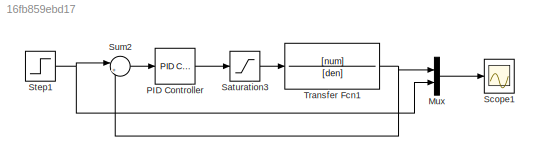
MODEL slx_16fb859ebd17
KIND model
CONFIG AbsTol = auto
CONFIG EnableMultiTasking = off
CONFIG FixedStep = auto
CONFIG MaxStep = auto
CONFIG MinStep = auto
CONFIG RelTol = 1e-3
CONFIG SampleTimeConstraint = Unconstrained
CONFIG SolverName = VariableStepAuto
CONFIG StartTime = 0.0
CONFIG StopTime = 0.05
BLOCK [Mux] Mux
  DisplayOption = bar
  Inputs = 2
BLOCK [Reference] PID Controller  REF=slpidlib/PID Controller
  LibrarySourceBlock = simulink/Continuous/PID Controller
  SourceBlock = slpidlib/PID Controller
  SourceType = PID 1dof
BLOCK [Saturate] Saturation3
  LowerLimit = -15
  UpperLimit = 15
BLOCK [Scope] Scope1
  Floating = off
  NumInputPorts = 1
  ScopeSpecificationString = Simulink.scopes.TimeScopeBlockCfg('CurrentConfiguration', extmgr.ConfigurationSet(extmgr.Configuration('Core','General UI',true),extmgr.Configuration('Core','Source UI',true),extmgr.Configuration('Sources','WiredSimulink',true),extmgr.Configuration('Visuals','Time Domain',true,'SerializedDisplays',{struct('MinYLimReal','-0.79033','MaxYLimReal','7.113','YLabelReal','','MinYLimMag','0.00000','MaxYLi...<+1563ch>
BLOCK [Step] Step1
  After = 5
  SampleTime = 0.00000001
  Time = 0.01
BLOCK [Sum] Sum2
  Inputs = |+-
BLOCK [TransferFcn] Transfer Fcn1
  Denominator = [den]
  Numerator = [num]
LINE Mux:1 -> Scope1:1
LINE PID Controller:1 -> Saturation3:1
LINE Saturation3:1 -> Transfer Fcn1:1
NET Step1:1 -> Mux:2, Sum2:1
LINE Sum2:1 -> PID Controller:1
NET Transfer Fcn1:1 -> Mux:1, Sum2:2
note: NET lines group one-source signal fan-out (src -> all destinations, sorted); 1:1 wires keep LINE
